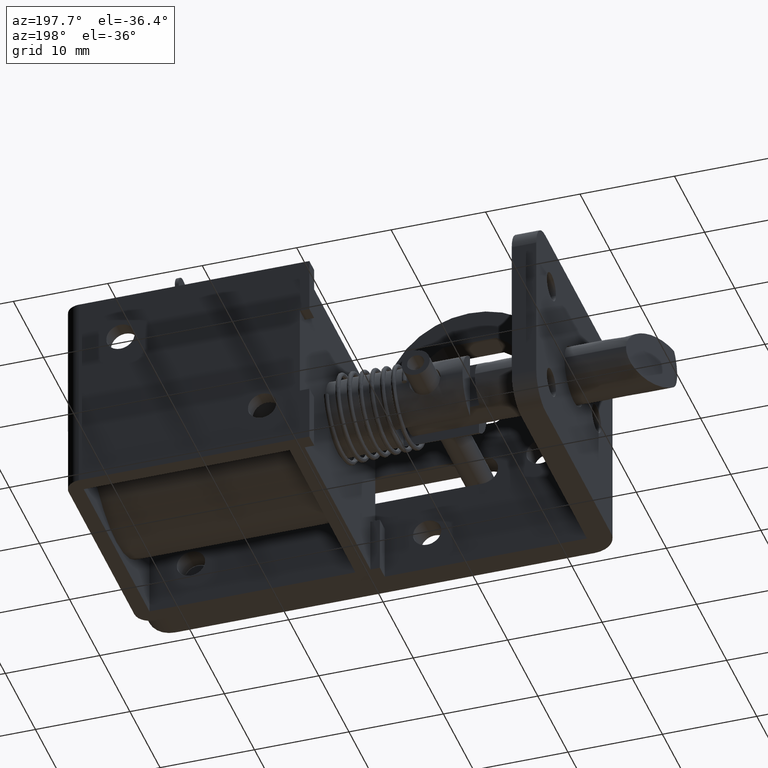
[diagram: clean part render]
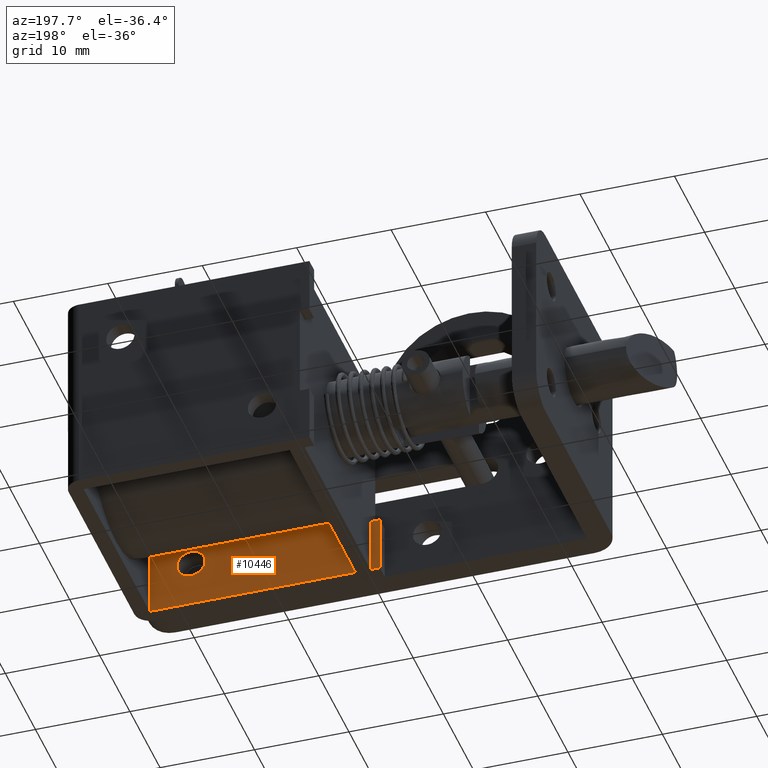
[diagram: same view with one face highlighted and labeled with its STEP entity id]
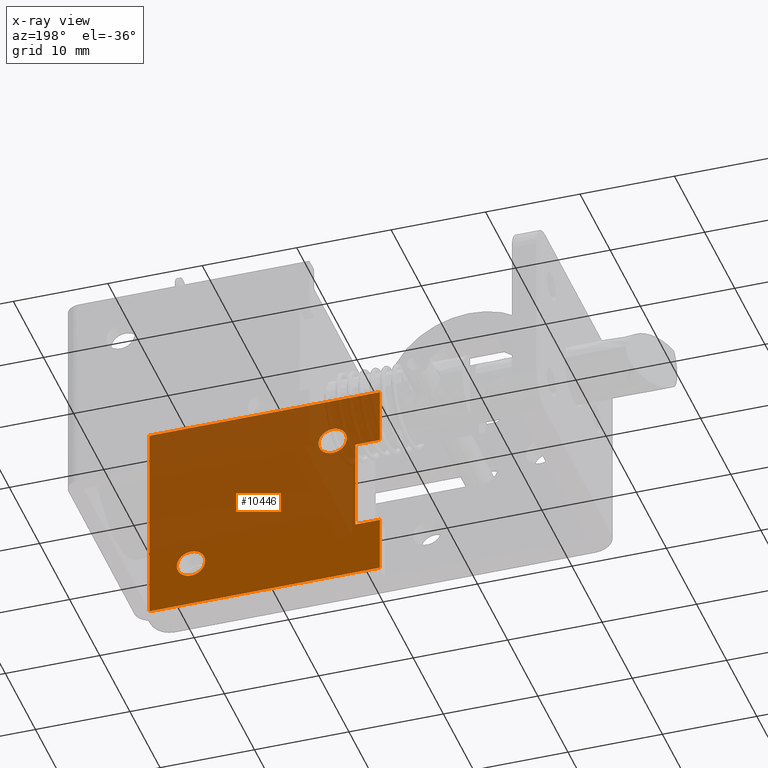
[diagram: x-ray of the same camera — body ghosted, the highlighted face saturated]
A machine part, auxiliary view. The second image highlights one B-rep face of the part: STEP entity #10446.
The next image is the same camera in x-ray: the body ghosted, the highlighted face saturated — about 68% of this face is hidden behind the body in this view.
In plain terms, the highlighted face is a freeform B-spline surface patch.
Its self-contained STEP definition (entity closure, byte-faithful):
#7072=CARTESIAN_POINT('',(12.504623999419699,4.200005999999926,-4.882311356161810));
#7073=VERTEX_POINT('',#7072);
#7079=CARTESIAN_POINT('',(14.0,4.200005999999926,-3.500000000000000));
#7080=VERTEX_POINT('',#7079);
#7081=CARTESIAN_POINT('',(14.0,4.200005999999926,-3.500000000000000));
#7082=CARTESIAN_POINT('',(12.613414262971091,4.200005999999926,-3.500000000000000));
#7083=CARTESIAN_POINT('',(12.504623999419705,4.200005999999926,-4.882311356161810));
#7091=(BOUNDED_CURVE()B_SPLINE_CURVE(2,(#7081,#7082,#7083),.UNSPECIFIED.,.F.,.U.)B_SPLINE_CURVE_WITH_KNOTS((3,3),(0.0,0.236331300576269),.UNSPECIFIED.)CURVE()GEOMETRIC_REPRESENTATION_ITEM()RATIONAL_B_SPLINE_CURVE((1.0,0.723120658671388,0.969723356053909))REPRESENTATION_ITEM(''));
#7092=EDGE_CURVE('',#7080,#7073,#7091,.T.);
#7094=CARTESIAN_POINT('',(15.495376000580301,4.200005999999926,-5.117688643838190));
#7095=VERTEX_POINT('',#7094);
#7096=CARTESIAN_POINT('',(15.495376000580301,4.200005999999926,-5.117688643838190));
#7097=CARTESIAN_POINT('',(15.500000000000002,4.200005999999926,-5.058935160759072));
#7098=CARTESIAN_POINT('',(15.500000000000000,4.200005999999926,-5.0));
#7099=CARTESIAN_POINT('',(15.500000000000004,4.200005999999925,-3.499999999999999));
#7100=CARTESIAN_POINT('',(14.0,4.200005999999926,-3.500000000000000));
#7108=(BOUNDED_CURVE()B_SPLINE_CURVE(2,(#7096,#7097,#7098,#7099,#7100),.UNSPECIFIED.,.F.,.U.)B_SPLINE_CURVE_WITH_KNOTS((3,2,3),(0.736331300576269,0.750000000000000,1.0),.UNSPECIFIED.)CURVE()GEOMETRIC_REPRESENTATION_ITEM()RATIONAL_B_SPLINE_CURVE((0.969723356053908,0.983986122515159,1.0,0.707106781186548,1.0))REPRESENTATION_ITEM(''));
#7109=EDGE_CURVE('',#7095,#7080,#7108,.T.);
#7185=CARTESIAN_POINT('',(14.0,4.200005999999926,-6.500000000000001));
#7186=VERTEX_POINT('',#7185);
#7187=CARTESIAN_POINT('',(14.0,4.200005999999926,-6.500000000000001));
#7188=CARTESIAN_POINT('',(15.386585737028911,4.200005999999926,-6.500000000000003));
#7189=CARTESIAN_POINT('',(15.495376000580295,4.200005999999926,-5.117688643838190));
#7197=(BOUNDED_CURVE()B_SPLINE_CURVE(2,(#7187,#7188,#7189),.UNSPECIFIED.,.F.,.U.)B_SPLINE_CURVE_WITH_KNOTS((3,3),(0.500000000000000,0.736331300576269),.UNSPECIFIED.)CURVE()GEOMETRIC_REPRESENTATION_ITEM()RATIONAL_B_SPLINE_CURVE((1.0,0.723120658671388,0.969723356053909))REPRESENTATION_ITEM(''));
#7198=EDGE_CURVE('',#7186,#7095,#7197,.T.);
#7200=CARTESIAN_POINT('',(12.504623999419705,4.200005999999926,-4.882311356161810));
#7201=CARTESIAN_POINT('',(12.500000000000007,4.200005999999926,-4.941064839240931));
#7202=CARTESIAN_POINT('',(12.500000000000000,4.200005999999926,-5.0));
#7203=CARTESIAN_POINT('',(12.500000000000000,4.200005999999925,-6.500000000000003));
#7204=CARTESIAN_POINT('',(14.0,4.200005999999926,-6.500000000000001));
#7212=(BOUNDED_CURVE()B_SPLINE_CURVE(2,(#7200,#7201,#7202,#7203,#7204),.UNSPECIFIED.,.F.,.U.)B_SPLINE_CURVE_WITH_KNOTS((3,2,3),(0.236331300576269,0.250000000000000,0.500000000000000),.UNSPECIFIED.)CURVE()GEOMETRIC_REPRESENTATION_ITEM()RATIONAL_B_SPLINE_CURVE((0.969723356053909,0.983986122515159,1.0,0.707106781186548,1.0))REPRESENTATION_ITEM(''));
#7213=EDGE_CURVE('',#7073,#7186,#7212,.T.);
#7254=CARTESIAN_POINT('',(27.504623999419699,4.200005999999926,-16.882304356161612));
#7255=VERTEX_POINT('',#7254);
#7261=CARTESIAN_POINT('',(29.0,4.200005999999926,-15.499992999999799));
#7262=VERTEX_POINT('',#7261);
#7263=CARTESIAN_POINT('',(29.0,4.200005999999926,-15.499992999999799));
#7264=CARTESIAN_POINT('',(27.613414262971091,4.200005999999926,-15.499992999999799));
#7265=CARTESIAN_POINT('',(27.504623999419710,4.200005999999926,-16.882304356161612));
#7273=(BOUNDED_CURVE()B_SPLINE_CURVE(2,(#7263,#7264,#7265),.UNSPECIFIED.,.F.,.U.)B_SPLINE_CURVE_WITH_KNOTS((3,3),(0.0,0.236331300576269),.UNSPECIFIED.)CURVE()GEOMETRIC_REPRESENTATION_ITEM()RATIONAL_B_SPLINE_CURVE((1.0,0.723120658671388,0.969723356053909))REPRESENTATION_ITEM(''));
#7274=EDGE_CURVE('',#7262,#7255,#7273,.T.);
#7276=CARTESIAN_POINT('',(30.495376000580301,4.200005999999925,-17.117681643837990));
#7277=VERTEX_POINT('',#7276);
#7278=CARTESIAN_POINT('',(30.495376000580301,4.200005999999925,-17.117681643837994));
#7279=CARTESIAN_POINT('',(30.500000000000007,4.200005999999926,-17.058928160758875));
#7280=CARTESIAN_POINT('',(30.500000000000000,4.200005999999926,-16.999992999999801));
#7281=CARTESIAN_POINT('',(30.499999999999996,4.200005999999925,-15.499992999999805));
#7282=CARTESIAN_POINT('',(29.0,4.200005999999926,-15.499992999999799));
#7290=(BOUNDED_CURVE()B_SPLINE_CURVE(2,(#7278,#7279,#7280,#7281,#7282),.UNSPECIFIED.,.F.,.U.)B_SPLINE_CURVE_WITH_KNOTS((3,2,3),(0.736331300576269,0.750000000000000,1.0),.UNSPECIFIED.)CURVE()GEOMETRIC_REPRESENTATION_ITEM()RATIONAL_B_SPLINE_CURVE((0.969723356053908,0.983986122515159,1.0,0.707106781186548,1.0))REPRESENTATION_ITEM(''));
#7291=EDGE_CURVE('',#7277,#7262,#7290,.T.);
#7367=CARTESIAN_POINT('',(29.0,4.200005999999926,-18.499992999999801));
#7368=VERTEX_POINT('',#7367);
#7369=CARTESIAN_POINT('',(29.0,4.200005999999926,-18.499992999999801));
#7370=CARTESIAN_POINT('',(30.386585737028906,4.200005999999926,-18.499992999999808));
#7371=CARTESIAN_POINT('',(30.495376000580304,4.200005999999925,-17.117681643837994));
#7379=(BOUNDED_CURVE()B_SPLINE_CURVE(2,(#7369,#7370,#7371),.UNSPECIFIED.,.F.,.U.)B_SPLINE_CURVE_WITH_KNOTS((3,3),(0.500000000000000,0.736331300576269),.UNSPECIFIED.)CURVE()GEOMETRIC_REPRESENTATION_ITEM()RATIONAL_B_SPLINE_CURVE((1.0,0.723120658671388,0.969723356053909))REPRESENTATION_ITEM(''));
#7380=EDGE_CURVE('',#7368,#7277,#7379,.T.);
#7382=CARTESIAN_POINT('',(27.504623999419710,4.200005999999926,-16.882304356161612));
#7383=CARTESIAN_POINT('',(27.499999999999996,4.200005999999926,-16.941057839240731));
#7384=CARTESIAN_POINT('',(27.500000000000000,4.200005999999926,-16.999992999999801));
#7385=CARTESIAN_POINT('',(27.500000000000004,4.200005999999925,-18.499992999999797));
#7386=CARTESIAN_POINT('',(29.0,4.200005999999926,-18.499992999999801));
#7394=(BOUNDED_CURVE()B_SPLINE_CURVE(2,(#7382,#7383,#7384,#7385,#7386),.UNSPECIFIED.,.F.,.U.)B_SPLINE_CURVE_WITH_KNOTS((3,2,3),(0.236331300576269,0.250000000000000,0.500000000000000),.UNSPECIFIED.)CURVE()GEOMETRIC_REPRESENTATION_ITEM()RATIONAL_B_SPLINE_CURVE((0.969723356053909,0.983986122515159,1.0,0.707106781186548,1.0))REPRESENTATION_ITEM(''));
#7395=EDGE_CURVE('',#7255,#7368,#7394,.T.);
#9017=CARTESIAN_POINT('',(11.600005999999800,4.200002999999910,-6.0));
#9018=VERTEX_POINT('',#9017);
#9024=CARTESIAN_POINT('',(11.600005999999780,4.199999999999845,-16.0));
#9025=VERTEX_POINT('',#9024);
#9026=CARTESIAN_POINT('',(11.600005999999800,4.200002999999910,-6.0));
#9027=CARTESIAN_POINT('',(11.600005999999780,4.199999999999845,-16.0));
#9028=QUASI_UNIFORM_CURVE('',1,(#9026,#9027),.UNSPECIFIED.,.F.,.U.);
#9029=EDGE_CURVE('',#9018,#9025,#9028,.T.);
#9044=CARTESIAN_POINT('',(9.0,4.200006000000000,-16.0));
#9045=VERTEX_POINT('',#9044);
#9059=CARTESIAN_POINT('',(11.600005999999780,4.199999999999845,-16.0));
#9060=CARTESIAN_POINT('',(9.0,4.200006000000000,-16.0));
#9061=QUASI_UNIFORM_CURVE('',1,(#9059,#9060),.UNSPECIFIED.,.F.,.U.);
#9062=EDGE_CURVE('',#9025,#9045,#9061,.T.);
#9074=CARTESIAN_POINT('',(9.0,4.200006000000000,-6.0));
#9075=VERTEX_POINT('',#9074);
#9081=CARTESIAN_POINT('',(11.600005999999800,4.200002999999910,-6.0));
#9082=CARTESIAN_POINT('',(9.0,4.200006000000000,-6.0));
#9083=QUASI_UNIFORM_CURVE('',1,(#9081,#9082),.UNSPECIFIED.,.F.,.U.);
#9084=EDGE_CURVE('',#9018,#9075,#9083,.T.);
#10069=CARTESIAN_POINT('',(33.400010000000002,4.200006000000000,0.0));
#10070=VERTEX_POINT('',#10069);
#10076=CARTESIAN_POINT('',(9.0,4.200006000000000,0.0));
#10077=VERTEX_POINT('',#10076);
#10078=CARTESIAN_POINT('',(33.400010000000002,4.200006000000000,0.0));
#10079=CARTESIAN_POINT('',(9.0,4.200006000000000,0.0));
#10080=QUASI_UNIFORM_CURVE('',1,(#10078,#10079),.UNSPECIFIED.,.F.,.U.);
#10081=EDGE_CURVE('',#10070,#10077,#10080,.T.);
#10125=CARTESIAN_POINT('',(9.0,4.200006000000000,-22.0));
#10126=VERTEX_POINT('',#10125);
#10132=CARTESIAN_POINT('',(33.400010000000002,4.200006000000000,-22.0));
#10133=VERTEX_POINT('',#10132);
#10134=CARTESIAN_POINT('',(33.400010000000002,4.200006000000000,-22.0));
#10135=CARTESIAN_POINT('',(9.0,4.200006000000000,-22.0));
#10136=QUASI_UNIFORM_CURVE('',1,(#10134,#10135),.UNSPECIFIED.,.F.,.U.);
#10137=EDGE_CURVE('',#10133,#10126,#10136,.T.);
#10187=CARTESIAN_POINT('',(9.0,4.200006000000000,-22.0));
#10188=CARTESIAN_POINT('',(9.0,4.200006000000000,-16.0));
#10189=QUASI_UNIFORM_CURVE('',1,(#10187,#10188),.UNSPECIFIED.,.F.,.U.);
#10190=EDGE_CURVE('',#10126,#9045,#10189,.T.);
#10213=CARTESIAN_POINT('',(33.400010000000002,4.200006000000000,-22.0));
#10214=CARTESIAN_POINT('',(33.400010000000002,4.200006000000000,0.0));
#10215=QUASI_UNIFORM_CURVE('',1,(#10213,#10214),.UNSPECIFIED.,.F.,.U.);
#10216=EDGE_CURVE('',#10133,#10070,#10215,.T.);
#10411=CARTESIAN_POINT('',(9.0,4.200006000000000,-6.0));
#10412=CARTESIAN_POINT('',(9.0,4.200006000000000,0.0));
#10413=QUASI_UNIFORM_CURVE('',1,(#10411,#10412),.UNSPECIFIED.,.F.,.U.);
#10414=EDGE_CURVE('',#9075,#10077,#10413,.T.);
#10419=CARTESIAN_POINT('',(7.781219634965927,4.200006000000000,-23.098899957359730));
#10420=CARTESIAN_POINT('',(7.781219634965927,4.200006000000000,1.098900547445717));
#10421=CARTESIAN_POINT('',(34.618789274268643,4.200006000000000,-23.098899957359730));
#10422=CARTESIAN_POINT('',(34.618789274268643,4.200006000000000,1.098900547445717));
#10423=B_SPLINE_SURFACE_WITH_KNOTS('',1,1,((#10419,#10421),(#10420,#10422)),.UNSPECIFIED.,.F.,.F.,.U.,(2,2),(2,2),(0.0,24.197800504805450),(0.0,26.837569639302711),.UNSPECIFIED.);
#10424=ORIENTED_EDGE('',*,*,#9029,.F.);
#10425=ORIENTED_EDGE('',*,*,#9084,.T.);
#10426=ORIENTED_EDGE('',*,*,#10414,.T.);
#10427=ORIENTED_EDGE('',*,*,#10081,.F.);
#10428=ORIENTED_EDGE('',*,*,#10216,.F.);
#10429=ORIENTED_EDGE('',*,*,#10137,.T.);
#10430=ORIENTED_EDGE('',*,*,#10190,.T.);
#10431=ORIENTED_EDGE('',*,*,#9062,.F.);
#10432=EDGE_LOOP('',(#10424,#10425,#10426,#10427,#10428,#10429,#10430,#10431));
#10433=FACE_OUTER_BOUND('',#10432,.T.);
#10434=ORIENTED_EDGE('',*,*,#7380,.T.);
#10435=ORIENTED_EDGE('',*,*,#7291,.T.);
#10436=ORIENTED_EDGE('',*,*,#7274,.T.);
#10437=ORIENTED_EDGE('',*,*,#7395,.T.);
#10438=EDGE_LOOP('',(#10434,#10435,#10436,#10437));
#10439=FACE_BOUND('',#10438,.T.);
#10440=ORIENTED_EDGE('',*,*,#7198,.T.);
#10441=ORIENTED_EDGE('',*,*,#7109,.T.);
#10442=ORIENTED_EDGE('',*,*,#7092,.T.);
#10443=ORIENTED_EDGE('',*,*,#7213,.T.);
#10444=EDGE_LOOP('',(#10440,#10441,#10442,#10443));
#10445=FACE_BOUND('',#10444,.T.);
#10446=ADVANCED_FACE('',(#10433,#10439,#10445),#10423,.T.);